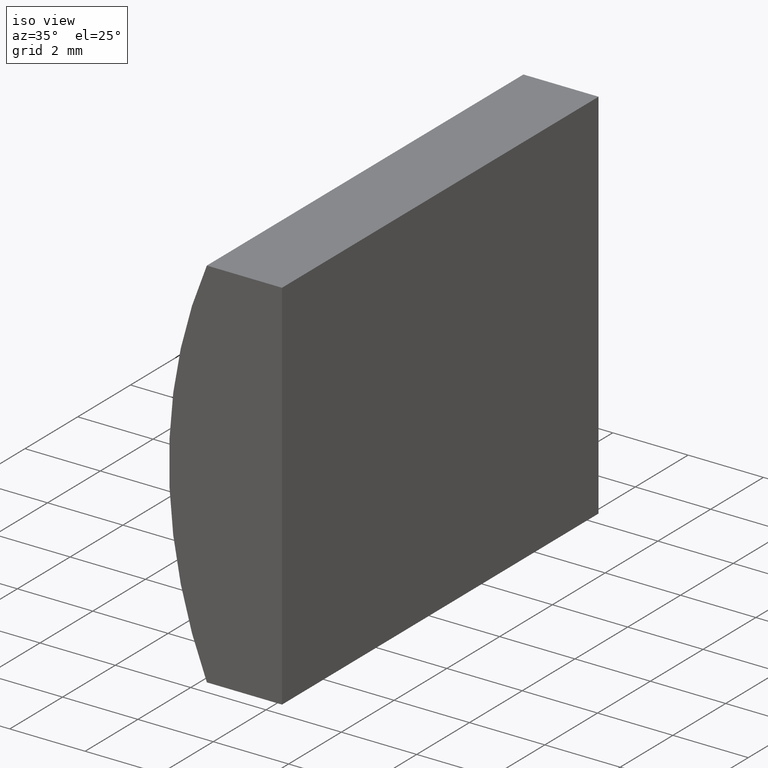
[diagram: clean part render]
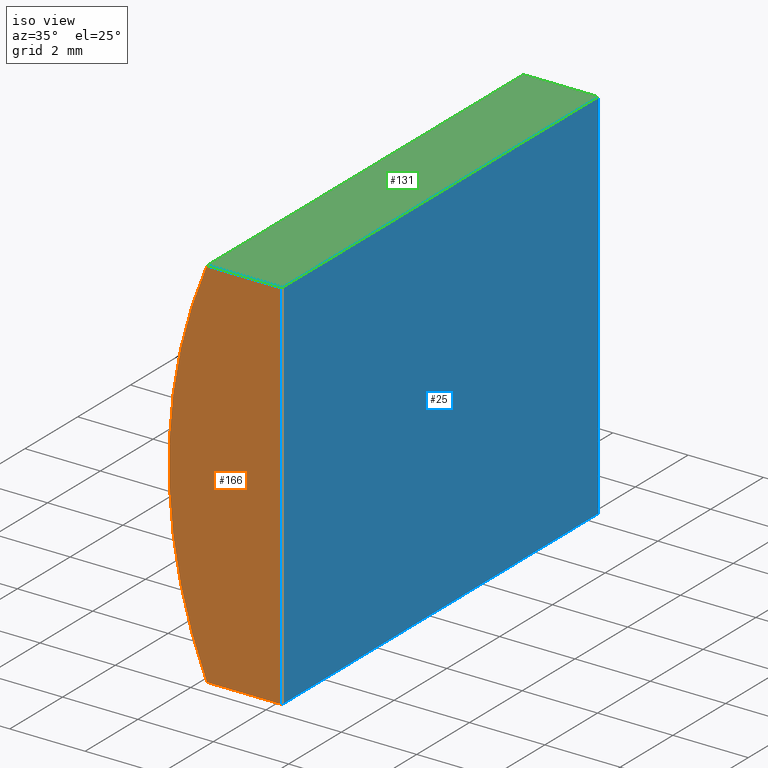
[diagram: same view with three faces highlighted in distinct colors, each labeled with its STEP entity id]
A machine part, iso view with three faces highlighted in distinct colors.
Their STEP definitions:

[orange] entity #166 — the highlighted planar face has unit normal (0, 1, 0).
#4 = DIRECTION ( 'NONE',  ( 0.0000000000000000000, 1.000000000000000000, 0.0000000000000000000 ) ) ;
#8 = CARTESIAN_POINT ( 'NONE',  ( -5.574795665148736900, 0.0000000000000000000, -5.000000000000001800 ) ) ;
#20 = DIRECTION ( 'NONE',  ( -3.469446951953613700E-016, -0.0000000000000000000, -1.000000000000000000 ) ) ;
#28 = EDGE_CURVE ( 'NONE', #178, #196, #48, .T. ) ;
#38 = DIRECTION ( 'NONE',  ( 1.000000000000000000, 0.0000000000000000000, 0.0000000000000000000 ) ) ;
#48 = LINE ( 'NONE', #73, #124 ) ;
#49 = CIRCLE ( 'NONE', #190, 12.93000000000000100 ) ;
#52 = VECTOR ( 'NONE', #67, 1000.000000000000000 ) ;
#65 = ORIENTED_EDGE ( 'NONE', *, *, #118, .F. ) ;
#67 = DIRECTION ( 'NONE',  ( -1.000000000000000000, -0.0000000000000000000, 8.699145040184285100E-016 ) ) ;
#73 = CARTESIAN_POINT ( 'NONE',  ( -7.568926660739147200, 0.0000000000000000000, 5.000000000000000000 ) ) ;
#77 = DIRECTION ( 'NONE',  ( 0.0000000000000000000, 1.000000000000000000, 0.0000000000000000000 ) ) ;
#81 = CARTESIAN_POINT ( 'NONE',  ( -7.568926660739147200, 0.0000000000000000000, 5.000000000000000000 ) ) ;
#84 = ORIENTED_EDGE ( 'NONE', *, *, #135, .F. ) ;
#95 = DIRECTION ( 'NONE',  ( 0.0000000000000000000, -0.0000000000000000000, 1.000000000000000000 ) ) ;
#107 = VERTEX_POINT ( 'NONE', #114 ) ;
#109 = PLANE ( 'NONE',  #188 ) ;
#112 = CARTESIAN_POINT ( 'NONE',  ( 4.355204334851265500, 0.0000000000000000000, 4.286263797015675000E-017 ) ) ;
#114 = CARTESIAN_POINT ( 'NONE',  ( -7.568926660739147200, 0.0000000000000000000, -5.000000000000000000 ) ) ;
#115 = FACE_OUTER_BOUND ( 'NONE', #157, .T. ) ;
#118 = EDGE_CURVE ( 'NONE', #196, #147, #146, .T. ) ;
#121 = VECTOR ( 'NONE', #20, 1000.000000000000000 ) ;
#124 = VECTOR ( 'NONE', #38, 1000.000000000000000 ) ;
#126 = CARTESIAN_POINT ( 'NONE',  ( -5.574795665148733400, 0.0000000000000000000, 5.000000000000000000 ) ) ;
#132 = DIRECTION ( 'NONE',  ( 0.0000000000000000000, 0.0000000000000000000, 1.000000000000000000 ) ) ;
#134 = CARTESIAN_POINT ( 'NONE',  ( 4.355204334851265500, 0.0000000000000000000, 4.286263797015675000E-017 ) ) ;
#135 = EDGE_CURVE ( 'NONE', #107, #178, #49, .T. ) ;
#146 = LINE ( 'NONE', #8, #121 ) ;
#147 = VERTEX_POINT ( 'NONE', #201 ) ;
#157 = EDGE_LOOP ( 'NONE', ( #84, #158, #65, #179 ) ) ;
#158 = ORIENTED_EDGE ( 'NONE', *, *, #198, .F. ) ;
#166 = ADVANCED_FACE ( 'NONE', ( #115 ), #109, .F. ) ;
#178 = VERTEX_POINT ( 'NONE', #81 ) ;
#179 = ORIENTED_EDGE ( 'NONE', *, *, #28, .F. ) ;
#180 = CARTESIAN_POINT ( 'NONE',  ( -7.568926660739147200, 0.0000000000000000000, -5.000000000000000000 ) ) ;
#188 = AXIS2_PLACEMENT_3D ( 'NONE', #134, #4, #95 ) ;
#189 = LINE ( 'NONE', #180, #52 ) ;
#190 = AXIS2_PLACEMENT_3D ( 'NONE', #112, #77, #132 ) ;
#196 = VERTEX_POINT ( 'NONE', #126 ) ;
#198 = EDGE_CURVE ( 'NONE', #147, #107, #189, .T. ) ;
#201 = CARTESIAN_POINT ( 'NONE',  ( -5.574795665148736900, 0.0000000000000000000, -5.000000000000001800 ) ) ;

[blue] entity #25 — the highlighted planar face has unit normal (-1, 0, 0).
#2 = CARTESIAN_POINT ( 'NONE',  ( -5.574795665148736900, 12.00000000000000000, -5.000000000000001800 ) ) ;
#8 = CARTESIAN_POINT ( 'NONE',  ( -5.574795665148736900, 0.0000000000000000000, -5.000000000000001800 ) ) ;
#10 = ORIENTED_EDGE ( 'NONE', *, *, #17, .F. ) ;
#12 = ORIENTED_EDGE ( 'NONE', *, *, #118, .T. ) ;
#17 = EDGE_CURVE ( 'NONE', #164, #147, #104, .T. ) ;
#20 = DIRECTION ( 'NONE',  ( -3.469446951953613700E-016, -0.0000000000000000000, -1.000000000000000000 ) ) ;
#22 = DIRECTION ( 'NONE',  ( 3.469446951953613700E-016, 0.0000000000000000000, 1.000000000000000000 ) ) ;
#23 = CARTESIAN_POINT ( 'NONE',  ( -5.574795665148736900, 12.00000000000000000, -5.000000000000001800 ) ) ;
#24 = LINE ( 'NONE', #43, #133 ) ;
#25 = ADVANCED_FACE ( 'NONE', ( #94 ), #203, .F. ) ;
#26 = EDGE_CURVE ( 'NONE', #142, #196, #24, .T. ) ;
#29 = DIRECTION ( 'NONE',  ( -3.469446951953613700E-016, -0.0000000000000000000, -1.000000000000000000 ) ) ;
#30 = ORIENTED_EDGE ( 'NONE', *, *, #26, .T. ) ;
#31 = CARTESIAN_POINT ( 'NONE',  ( -5.574795665148733400, 12.00000000000000000, 5.000000000000000000 ) ) ;
#42 = VECTOR ( 'NONE', #100, 1000.000000000000000 ) ;
#43 = CARTESIAN_POINT ( 'NONE',  ( -5.574795665148733400, 12.00000000000000000, 5.000000000000000000 ) ) ;
#60 = DIRECTION ( 'NONE',  ( -1.000000000000000000, 0.0000000000000000000, 3.469446951953613700E-016 ) ) ;
#68 = AXIS2_PLACEMENT_3D ( 'NONE', #155, #60, #22 ) ;
#70 = EDGE_LOOP ( 'NONE', ( #12, #10, #97, #30 ) ) ;
#94 = FACE_OUTER_BOUND ( 'NONE', #70, .T. ) ;
#97 = ORIENTED_EDGE ( 'NONE', *, *, #156, .F. ) ;
#100 = DIRECTION ( 'NONE',  ( -0.0000000000000000000, -1.000000000000000000, -0.0000000000000000000 ) ) ;
#104 = LINE ( 'NONE', #2, #42 ) ;
#108 = DIRECTION ( 'NONE',  ( -0.0000000000000000000, -1.000000000000000000, -0.0000000000000000000 ) ) ;
#113 = LINE ( 'NONE', #23, #130 ) ;
#118 = EDGE_CURVE ( 'NONE', #196, #147, #146, .T. ) ;
#121 = VECTOR ( 'NONE', #20, 1000.000000000000000 ) ;
#126 = CARTESIAN_POINT ( 'NONE',  ( -5.574795665148733400, 0.0000000000000000000, 5.000000000000000000 ) ) ;
#130 = VECTOR ( 'NONE', #29, 1000.000000000000000 ) ;
#133 = VECTOR ( 'NONE', #108, 1000.000000000000000 ) ;
#141 = CARTESIAN_POINT ( 'NONE',  ( -5.574795665148736900, 12.00000000000000000, -5.000000000000001800 ) ) ;
#142 = VERTEX_POINT ( 'NONE', #31 ) ;
#146 = LINE ( 'NONE', #8, #121 ) ;
#147 = VERTEX_POINT ( 'NONE', #201 ) ;
#155 = CARTESIAN_POINT ( 'NONE',  ( -5.574795665148736900, 12.00000000000000000, -5.000000000000001800 ) ) ;
#156 = EDGE_CURVE ( 'NONE', #142, #164, #113, .T. ) ;
#164 = VERTEX_POINT ( 'NONE', #141 ) ;
#196 = VERTEX_POINT ( 'NONE', #126 ) ;
#201 = CARTESIAN_POINT ( 'NONE',  ( -5.574795665148736900, 0.0000000000000000000, -5.000000000000001800 ) ) ;
#203 = PLANE ( 'NONE',  #68 ) ;

[green] entity #131 — the highlighted planar face has unit normal (0, 0, -1).
#19 = VECTOR ( 'NONE', #152, 1000.000000000000000 ) ;
#24 = LINE ( 'NONE', #43, #133 ) ;
#26 = EDGE_CURVE ( 'NONE', #142, #196, #24, .T. ) ;
#28 = EDGE_CURVE ( 'NONE', #178, #196, #48, .T. ) ;
#31 = CARTESIAN_POINT ( 'NONE',  ( -5.574795665148733400, 12.00000000000000000, 5.000000000000000000 ) ) ;
#32 = LINE ( 'NONE', #89, #139 ) ;
#33 = PLANE ( 'NONE',  #120 ) ;
#38 = DIRECTION ( 'NONE',  ( 1.000000000000000000, 0.0000000000000000000, 0.0000000000000000000 ) ) ;
#40 = DIRECTION ( 'NONE',  ( -1.000000000000000000, 0.0000000000000000000, -0.0000000000000000000 ) ) ;
#41 = CARTESIAN_POINT ( 'NONE',  ( -7.568926660739147200, 12.00000000000000000, 5.000000000000000000 ) ) ;
#43 = CARTESIAN_POINT ( 'NONE',  ( -5.574795665148733400, 12.00000000000000000, 5.000000000000000000 ) ) ;
#47 = DIRECTION ( 'NONE',  ( 1.000000000000000000, 0.0000000000000000000, 0.0000000000000000000 ) ) ;
#48 = LINE ( 'NONE', #73, #124 ) ;
#73 = CARTESIAN_POINT ( 'NONE',  ( -7.568926660739147200, 0.0000000000000000000, 5.000000000000000000 ) ) ;
#74 = FACE_OUTER_BOUND ( 'NONE', #110, .T. ) ;
#81 = CARTESIAN_POINT ( 'NONE',  ( -7.568926660739147200, 0.0000000000000000000, 5.000000000000000000 ) ) ;
#89 = CARTESIAN_POINT ( 'NONE',  ( -7.568926660739147200, 12.00000000000000000, 5.000000000000000000 ) ) ;
#108 = DIRECTION ( 'NONE',  ( -0.0000000000000000000, -1.000000000000000000, -0.0000000000000000000 ) ) ;
#110 = EDGE_LOOP ( 'NONE', ( #153, #151, #154, #140 ) ) ;
#120 = AXIS2_PLACEMENT_3D ( 'NONE', #41, #129, #40 ) ;
#124 = VECTOR ( 'NONE', #38, 1000.000000000000000 ) ;
#126 = CARTESIAN_POINT ( 'NONE',  ( -5.574795665148733400, 0.0000000000000000000, 5.000000000000000000 ) ) ;
#129 = DIRECTION ( 'NONE',  ( 0.0000000000000000000, 0.0000000000000000000, -1.000000000000000000 ) ) ;
#131 = ADVANCED_FACE ( 'NONE', ( #74 ), #33, .F. ) ;
#133 = VECTOR ( 'NONE', #108, 1000.000000000000000 ) ;
#139 = VECTOR ( 'NONE', #47, 1000.000000000000000 ) ;
#140 = ORIENTED_EDGE ( 'NONE', *, *, #167, .T. ) ;
#142 = VERTEX_POINT ( 'NONE', #31 ) ;
#151 = ORIENTED_EDGE ( 'NONE', *, *, #26, .F. ) ;
#152 = DIRECTION ( 'NONE',  ( -0.0000000000000000000, -1.000000000000000000, -0.0000000000000000000 ) ) ;
#153 = ORIENTED_EDGE ( 'NONE', *, *, #28, .T. ) ;
#154 = ORIENTED_EDGE ( 'NONE', *, *, #202, .F. ) ;
#163 = CARTESIAN_POINT ( 'NONE',  ( -7.568926660739147200, 12.00000000000000000, 5.000000000000000000 ) ) ;
#165 = LINE ( 'NONE', #163, #19 ) ;
#167 = EDGE_CURVE ( 'NONE', #170, #178, #165, .T. ) ;
#170 = VERTEX_POINT ( 'NONE', #175 ) ;
#175 = CARTESIAN_POINT ( 'NONE',  ( -7.568926660739147200, 12.00000000000000000, 5.000000000000000000 ) ) ;
#178 = VERTEX_POINT ( 'NONE', #81 ) ;
#196 = VERTEX_POINT ( 'NONE', #126 ) ;
#202 = EDGE_CURVE ( 'NONE', #170, #142, #32, .T. ) ;